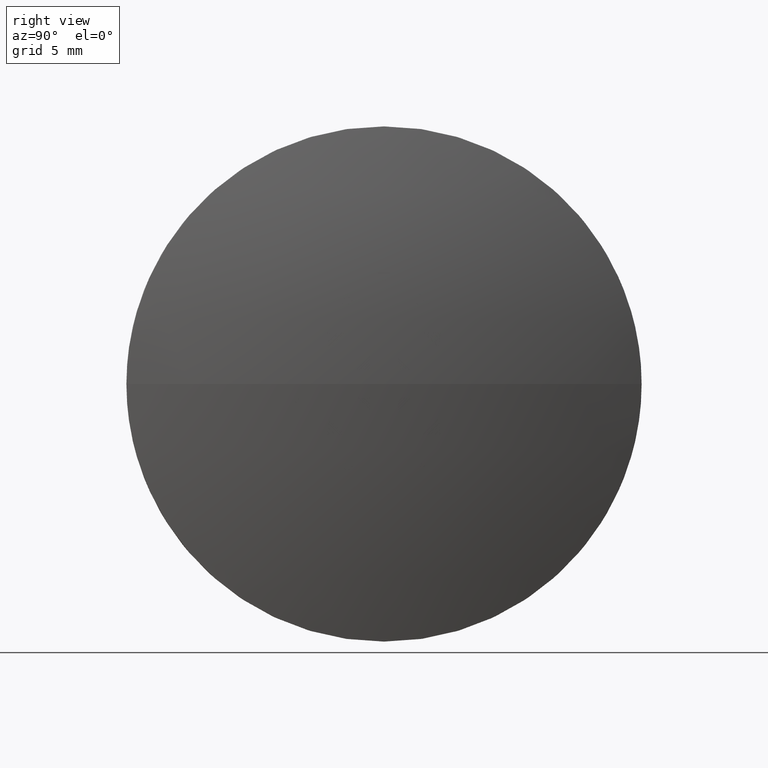
[diagram: clean part render]
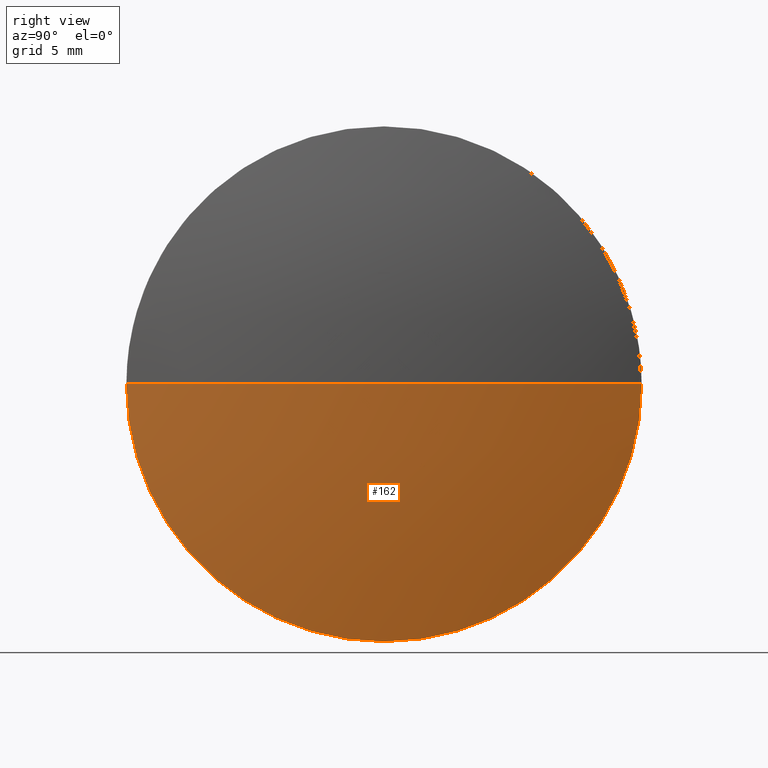
[diagram: same view with one face highlighted and labeled with its STEP entity id]
A machine part, right view. The second image highlights one B-rep face of the part: STEP entity #162.
In plain terms, the highlighted spherical surface has radius 82.5308 mm.
Its self-contained STEP definition (entity closure, byte-faithful):
#2 = VERTEX_POINT ( 'NONE', #88 ) ;
#6 = DIRECTION ( 'NONE',  ( -0.0000000000000000000, 0.0000000000000000000, 1.000000000000000000 ) ) ;
#8 = EDGE_CURVE ( 'NONE', #2, #154, #156, .T. ) ;
#13 = ORIENTED_EDGE ( 'NONE', *, *, #8, .F. ) ;
#18 = DIRECTION ( 'NONE',  ( -1.000000000000000000, -0.0000000000000000000, -0.0000000000000000000 ) ) ;
#26 = CIRCLE ( 'NONE', #179, 82.53081300813025200 ) ;
#30 = CARTESIAN_POINT ( 'NONE',  ( 651.4447609870927600, -13.65402050367691300, -2.449293598294710900E-015 ) ) ;
#36 = ORIENTED_EDGE ( 'NONE', *, *, #73, .F. ) ;
#40 = AXIS2_PLACEMENT_3D ( 'NONE', #152, #186, #105 ) ;
#43 = DIRECTION ( 'NONE',  ( 0.0000000000000000000, 0.0000000000000000000, 1.000000000000000000 ) ) ;
#45 = ORIENTED_EDGE ( 'NONE', *, *, #112, .F. ) ;
#46 = DIRECTION ( 'NONE',  ( 0.0000000000000000000, 1.000000000000000000, 0.0000000000000000000 ) ) ;
#53 = CARTESIAN_POINT ( 'NONE',  ( 571.3739479789625200, 6.345979496323131700, 0.0000000000000000000 ) ) ;
#60 = AXIS2_PLACEMENT_3D ( 'NONE', #151, #174, #46 ) ;
#65 = EDGE_CURVE ( 'NONE', #2, #142, #26, .T. ) ;
#73 = EDGE_CURVE ( 'NONE', #154, #103, #97, .T. ) ;
#75 = CARTESIAN_POINT ( 'NONE',  ( 651.4447609870927600, 6.345979496323141500, -20.00000000000000400 ) ) ;
#79 = CIRCLE ( 'NONE', #98, 20.00000000000000400 ) ;
#88 = CARTESIAN_POINT ( 'NONE',  ( 653.9047609870928000, 6.345979496323137100, 0.0000000000000000000 ) ) ;
#93 = FACE_OUTER_BOUND ( 'NONE', #182, .T. ) ;
#97 = CIRCLE ( 'NONE', #40, 20.00000000000000400 ) ;
#98 = AXIS2_PLACEMENT_3D ( 'NONE', #117, #18, #43 ) ;
#99 = SPHERICAL_SURFACE ( 'NONE', #60, 82.53081300813025200 ) ;
#102 = DIRECTION ( 'NONE',  ( 0.0000000000000000000, 1.000000000000000000, 1.224646799147353200E-016 ) ) ;
#103 = VERTEX_POINT ( 'NONE', #75 ) ;
#105 = DIRECTION ( 'NONE',  ( 0.0000000000000000000, 0.0000000000000000000, 1.000000000000000000 ) ) ;
#112 = EDGE_CURVE ( 'NONE', #103, #142, #79, .T. ) ;
#117 = CARTESIAN_POINT ( 'NONE',  ( 651.4447609870927600, 6.345979496323138800, 0.0000000000000000000 ) ) ;
#120 = CARTESIAN_POINT ( 'NONE',  ( 571.3739479789625200, 6.345979496323131700, 0.0000000000000000000 ) ) ;
#138 = DIRECTION ( 'NONE',  ( 0.0000000000000000000, 1.224646799147353200E-016, -1.000000000000000000 ) ) ;
#142 = VERTEX_POINT ( 'NONE', #30 ) ;
#146 = AXIS2_PLACEMENT_3D ( 'NONE', #53, #6, #163 ) ;
#151 = CARTESIAN_POINT ( 'NONE',  ( 571.3739479789625200, 6.345979496323131700, 0.0000000000000000000 ) ) ;
#152 = CARTESIAN_POINT ( 'NONE',  ( 651.4447609870927600, 6.345979496323138800, 0.0000000000000000000 ) ) ;
#154 = VERTEX_POINT ( 'NONE', #159 ) ;
#156 = CIRCLE ( 'NONE', #146, 82.53081300813025200 ) ;
#159 = CARTESIAN_POINT ( 'NONE',  ( 651.4447609870927600, 26.34597949632318100, 0.0000000000000000000 ) ) ;
#162 = ADVANCED_FACE ( 'NONE', ( #93 ), #99, .T. ) ;
#163 = DIRECTION ( 'NONE',  ( 1.000000000000000000, 0.0000000000000000000, 0.0000000000000000000 ) ) ;
#174 = DIRECTION ( 'NONE',  ( -0.0000000000000000000, 0.0000000000000000000, -1.000000000000000000 ) ) ;
#179 = AXIS2_PLACEMENT_3D ( 'NONE', #120, #138, #102 ) ;
#182 = EDGE_LOOP ( 'NONE', ( #13, #183, #45, #36 ) ) ;
#183 = ORIENTED_EDGE ( 'NONE', *, *, #65, .T. ) ;
#186 = DIRECTION ( 'NONE',  ( -1.000000000000000000, -0.0000000000000000000, -0.0000000000000000000 ) ) ;